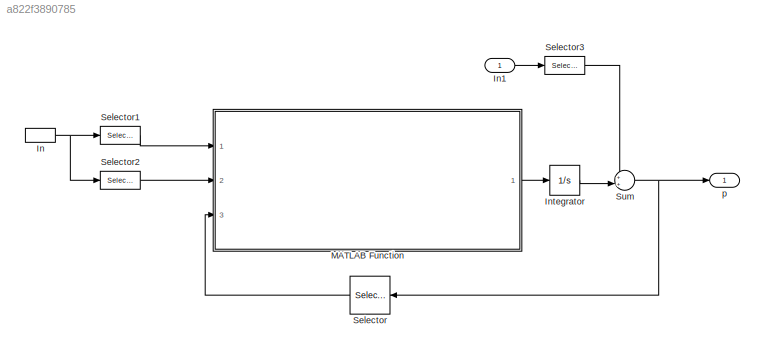
MODEL slx_a822f3890785
KIND model
CONFIG AbsTol = auto
CONFIG FixedStep = auto
CONFIG MaxStep = auto
CONFIG MinStep = auto
CONFIG RelTol = 1e-3
CONFIG SampleTimeConstraint = Unconstrained
CONFIG Solver = ode45
CONFIG SolverMode = Auto
CONFIG SolverName = ode45
CONFIG StartTime = 0.0
CONFIG StopTime = 10.0
BLOCK [InportShadow] In
  IconDisplay = Port number
BLOCK [Inport] In1
  IconDisplay = Port number
BLOCK [Integrator] Integrator
  InitialCondition = [0 0 0]
  Ports = [1, 1]
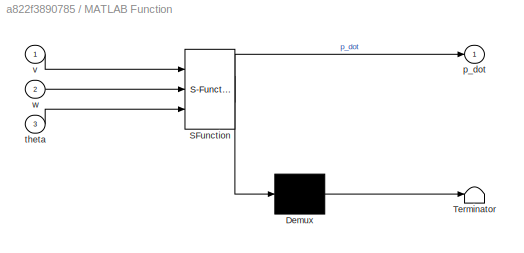
BLOCK [SubSystem] MATLAB Function
  ErrorFcn = Stateflow.Translate.translate
  PermitHierarchicalResolution = ExplicitOnly
  Ports = [3, 1]
  RequestExecContextInheritance = off
  SFBlockType = MATLAB Function
  TreatAsAtomicUnit = on
BLOCK [Demux] MATLAB Function/ Demux 
  Outputs = 1
  Ports = [1, 1]
BLOCK [S-Function] MATLAB Function/ SFunction 
  EnableBusSupport = on
  FunctionName = sf_sfun
  PortCounts = [3 2]
  Ports = [3, 2]
  Tag = Stateflow S-Function unicycle_control 2
BLOCK [Terminator] MATLAB Function/ Terminator 
BLOCK [Outport] MATLAB Function/p_dot
  IconDisplay = Port number
BLOCK [Inport] MATLAB Function/theta
  IconDisplay = Port number
  Port = 3
BLOCK [Inport] MATLAB Function/v
  IconDisplay = Port number
BLOCK [Inport] MATLAB Function/w
  IconDisplay = Port number
  Port = 2
BLOCK [Selector] Selector
  Indices = [3]
  InputPortWidth = 3
  Ports = [1, 1]
BLOCK [Selector] Selector1
  Indices = [1]
  InputPortWidth = 5
  Ports = [1, 1]
BLOCK [Selector] Selector2
  Indices = [2]
  InputPortWidth = 5
  Ports = [1, 1]
BLOCK [Selector] Selector3
  Indices = [3:5]
  InputPortWidth = 5
  Ports = [1, 1]
BLOCK [Sum] Sum
  IconShape = round
  InputSameDT = off
  Inputs = ++|
  OutDataTypeStr = Inherit: Inherit via internal rule
  Ports = [2, 1]
  SaturateOnIntegerOverflow = off
BLOCK [Outport] p
  IconDisplay = Port number
LINE In1:1 -> Selector3:1
NET In:1 -> Selector1:1, Selector2:1
LINE Integrator:1 -> Sum:2
LINE MATLAB Function:1 -> Integrator:1
LINE Selector1:1 -> MATLAB Function:1
LINE Selector2:1 -> MATLAB Function:2
LINE Selector3:1 -> Sum:1
LINE Selector:1 -> MATLAB Function:3
NET Sum:1 -> Selector:1, p:1
note: NET lines group one-source signal fan-out (src -> all destinations, sorted); 1:1 wires keep LINE
CHART MATLAB Function states=1 transitions=1
  STATE_LABEL 'eML_blk_kernel()'
  STATE_LABEL 'SCRIPT:\nfunction p_dot = unicycle(v,w,theta)\nR=1;\nx_dot=v*R*cos(theta);\ny_dot=v*R*sin(theta);\ntheta_dot=w;\np_dot=[x_dot;y_dot;theta_dot];'
